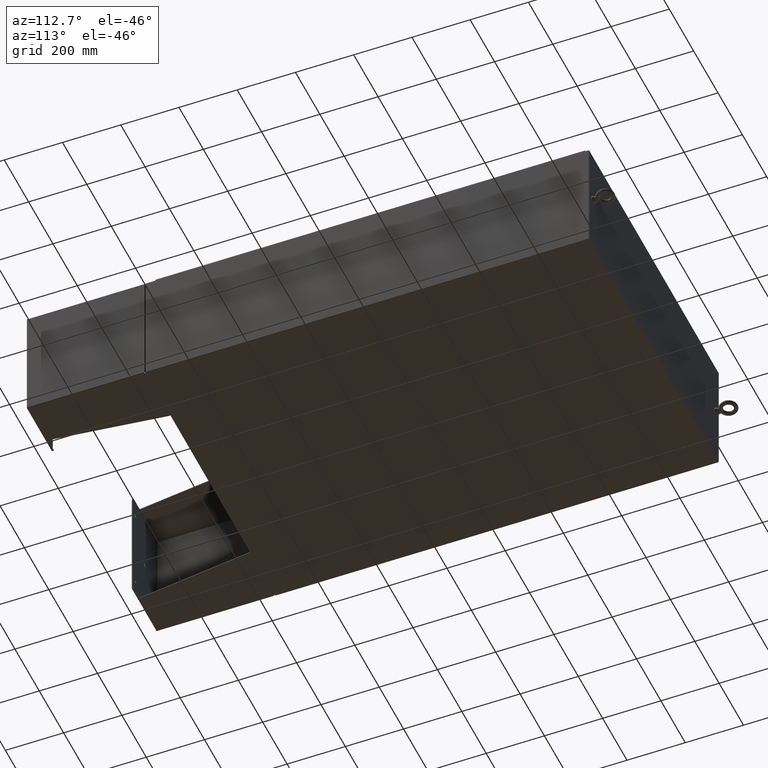
[diagram: clean part render]
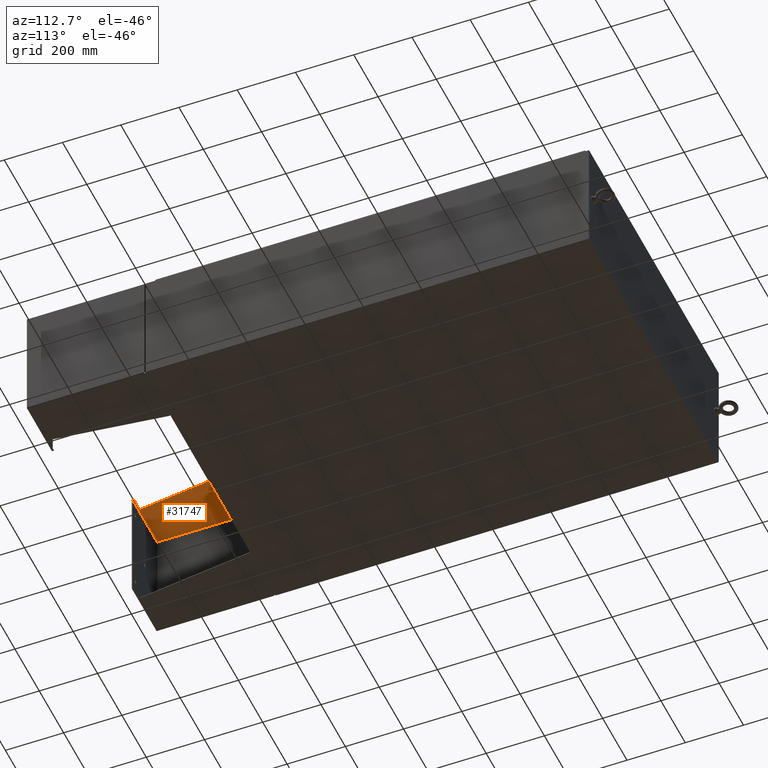
[diagram: same view with one face highlighted and labeled with its STEP entity id]
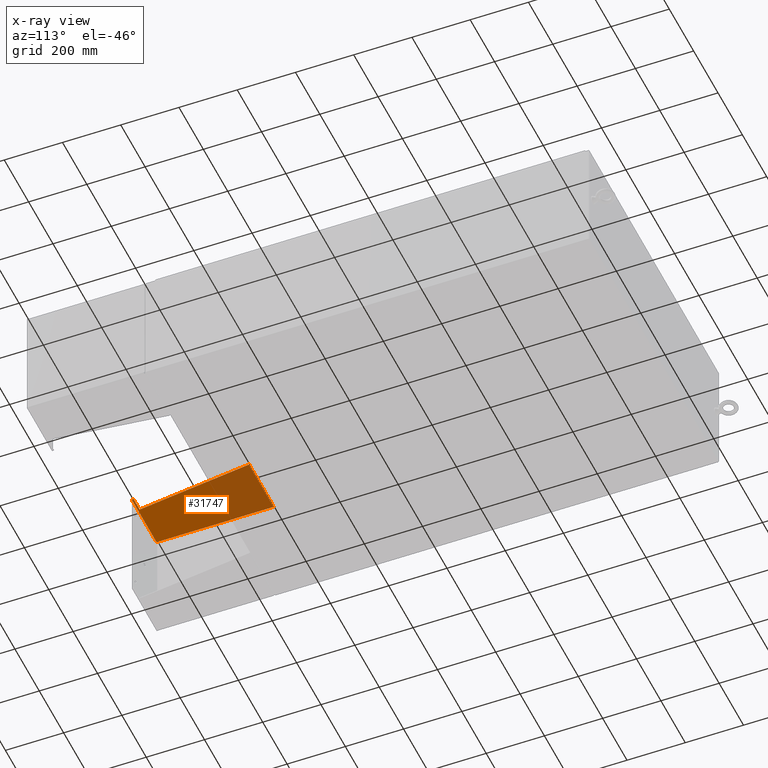
[diagram: x-ray of the same camera — body ghosted, the highlighted face saturated]
A machine part, auxiliary view. The second image highlights one B-rep face of the part: STEP entity #31747.
The next image is the same camera in x-ray: the body ghosted, the highlighted face saturated — about 39% of this face is hidden behind the body in this view.
In plain terms, the highlighted planar face has unit normal (0, 0, -1).
Its self-contained STEP definition (entity closure, byte-faithful):
#177 = CARTESIAN_POINT ( 'NONE',  ( -7.896000000000027400, -7.749999999999999100, 8.001000000000006600 ) ) ;
#434 = CARTESIAN_POINT ( 'NONE',  ( -7.896000000000019400, -7.749999999999999100, 6.052216497445928500 ) ) ;
#619 = EDGE_CURVE ( 'NONE', #62958, #22735, #54876, .T. ) ;
#1727 = CARTESIAN_POINT ( 'NONE',  ( -7.895999999999998100, 7.857000000000002000, 0.03900000000000031900 ) ) ;
#2424 = VERTEX_POINT ( 'NONE', #16133 ) ;
#3791 = EDGE_CURVE ( 'NONE', #22153, #2424, #48709, .T. ) ;
#8427 = EDGE_CURVE ( 'NONE', #40694, #22153, #34505, .T. ) ;
#8634 = CARTESIAN_POINT ( 'NONE',  ( -7.896000000000027400, 8.000000000000001800, 8.000999999999999400 ) ) ;
#9305 = ORIENTED_EDGE ( 'NONE', *, *, #3791, .F. ) ;
#10612 = VECTOR ( 'NONE', #34143, 39.37007874015748100 ) ;
#16133 = CARTESIAN_POINT ( 'NONE',  ( -7.896000000000027400, -7.749999999999999100, 8.001000000000006600 ) ) ;
#16880 = CARTESIAN_POINT ( 'NONE',  ( -7.896000000000019400, -7.749999999999999100, 6.052216497445928500 ) ) ;
#16950 = LINE ( 'NONE', #45311, #41317 ) ;
#18342 = DIRECTION ( 'NONE',  ( 1.000000000000000000, 0.0000000000000000000, 3.550958521948298200E-015 ) ) ;
#18847 = CARTESIAN_POINT ( 'NONE',  ( -7.895999999999998100, -7.999999999999999100, 0.03899999999999813300 ) ) ;
#20813 = DIRECTION ( 'NONE',  ( 0.0000000000000000000, 0.0000000000000000000, -1.000000000000000000 ) ) ;
#22153 = VERTEX_POINT ( 'NONE', #53953 ) ;
#22735 = VERTEX_POINT ( 'NONE', #61872 ) ;
#24190 = FACE_OUTER_BOUND ( 'NONE', #30683, .T. ) ;
#27486 = CARTESIAN_POINT ( 'NONE',  ( -7.896000000000027400, -7.999999999999999100, 8.000999999999999400 ) ) ;
#30475 = VECTOR ( 'NONE', #34404, 39.37007874015748100 ) ;
#30683 = EDGE_LOOP ( 'NONE', ( #44661, #30839, #9305, #48203, #51498, #56818 ) ) ;
#30839 = ORIENTED_EDGE ( 'NONE', *, *, #59064, .F. ) ;
#31012 = VERTEX_POINT ( 'NONE', #1727 ) ;
#31747 = ADVANCED_FACE ( 'NONE', ( #24190 ), #47522, .T. ) ;
#33033 = CARTESIAN_POINT ( 'NONE',  ( -7.895999999999999000, 8.000000000000001800, 0.03900000000000031900 ) ) ;
#34143 = DIRECTION ( 'NONE',  ( 3.550958521948298200E-015, 0.0000000000000000000, -1.000000000000000000 ) ) ;
#34404 = DIRECTION ( 'NONE',  ( -4.399772607369800400E-016, 0.9922942345449394800, 0.1239038017531047900 ) ) ;
#34505 = LINE ( 'NONE', #27486, #58909 ) ;
#35755 = EDGE_CURVE ( 'NONE', #22735, #31012, #16950, .T. ) ;
#35842 = VECTOR ( 'NONE', #52669, 39.37007874015748100 ) ;
#38427 = EDGE_CURVE ( 'NONE', #31012, #40694, #48786, .T. ) ;
#40694 = VERTEX_POINT ( 'NONE', #18847 ) ;
#41317 = VECTOR ( 'NONE', #20813, 39.37007874015748100 ) ;
#44661 = ORIENTED_EDGE ( 'NONE', *, *, #619, .F. ) ;
#45311 = CARTESIAN_POINT ( 'NONE',  ( -7.896000000000013200, 7.857000000000001100, 8.000999999999999400 ) ) ;
#47522 = PLANE ( 'NONE',  #50751 ) ;
#48203 = ORIENTED_EDGE ( 'NONE', *, *, #8427, .F. ) ;
#48709 = LINE ( 'NONE', #62555, #50243 ) ;
#48786 = LINE ( 'NONE', #33033, #35842 ) ;
#49124 = DIRECTION ( 'NONE',  ( -3.550958521948298200E-015, -0.0000000000000000000, 1.000000000000000000 ) ) ;
#50243 = VECTOR ( 'NONE', #50433, 39.37007874015748100 ) ;
#50433 = DIRECTION ( 'NONE',  ( -0.0000000000000000000, 1.000000000000000000, -0.0000000000000000000 ) ) ;
#50751 = AXIS2_PLACEMENT_3D ( 'NONE', #8634, #18342, #52433 ) ;
#51498 = ORIENTED_EDGE ( 'NONE', *, *, #38427, .F. ) ;
#52433 = DIRECTION ( 'NONE',  ( 3.550958521948298200E-015, 0.0000000000000000000, -1.000000000000000000 ) ) ;
#52669 = DIRECTION ( 'NONE',  ( 0.0000000000000000000, -1.000000000000000000, 0.0000000000000000000 ) ) ;
#53953 = CARTESIAN_POINT ( 'NONE',  ( -7.896000000000027400, -7.999999999999999100, 8.000999999999999400 ) ) ;
#54876 = LINE ( 'NONE', #434, #30475 ) ;
#56818 = ORIENTED_EDGE ( 'NONE', *, *, #35755, .F. ) ;
#58909 = VECTOR ( 'NONE', #49124, 39.37007874015748100 ) ;
#59064 = EDGE_CURVE ( 'NONE', #2424, #62958, #62357, .T. ) ;
#61872 = CARTESIAN_POINT ( 'NONE',  ( -7.896000000000013200, 7.857000000000001100, 8.000999999999999400 ) ) ;
#62357 = LINE ( 'NONE', #177, #10612 ) ;
#62555 = CARTESIAN_POINT ( 'NONE',  ( -7.896000000000027400, 8.000000000000001800, 8.000999999999999400 ) ) ;
#62958 = VERTEX_POINT ( 'NONE', #16880 ) ;